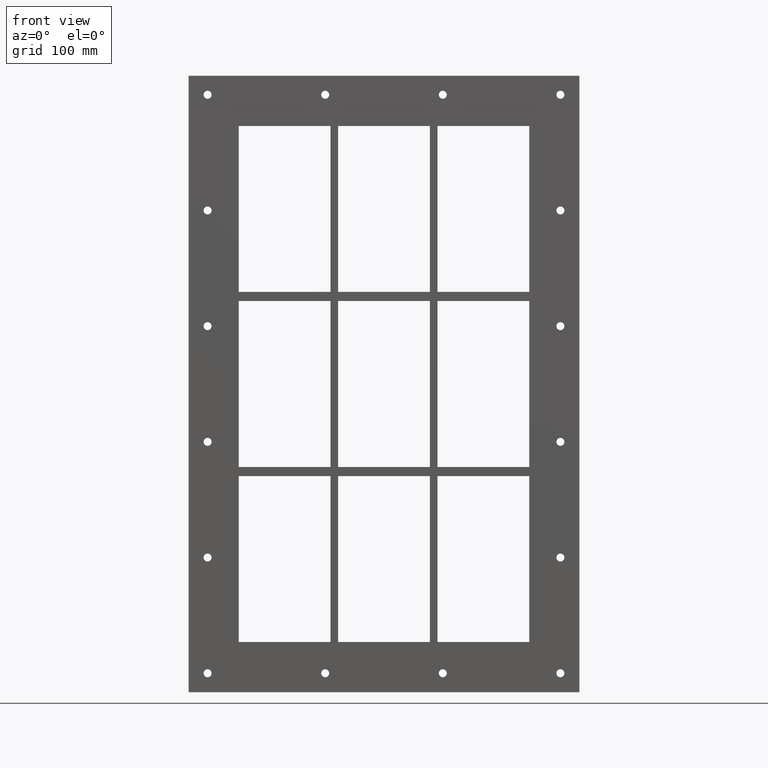
[diagram: clean part render]
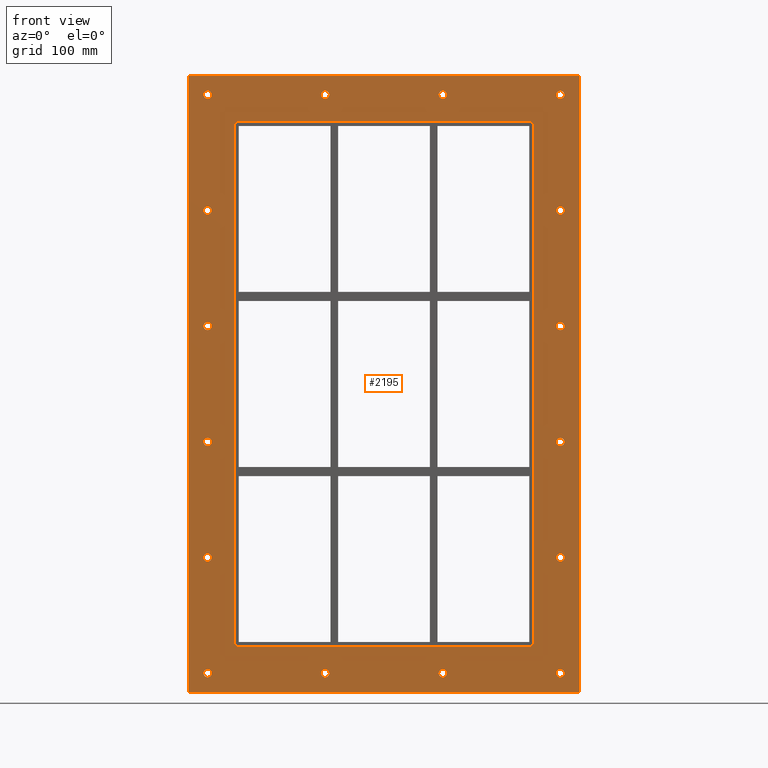
[diagram: same view with one face highlighted and labeled with its STEP entity id]
A machine part, front view. The second image highlights one B-rep face of the part: STEP entity #2195.
In plain terms, the highlighted planar face has unit normal (0, 1, 0).
Its self-contained STEP definition (entity closure, byte-faithful):
#84=CARTESIAN_POINT('',(-226.50000000000023,0.0,-380.00000000000011));
#85=VERTEX_POINT('',#84);
#86=CARTESIAN_POINT('',(-231.75000000000023,0.0,-380.00000000000011));
#87=DIRECTION('',(0.0,1.0,0.0));
#88=DIRECTION('',(1.0,0.0,0.0));
#89=AXIS2_PLACEMENT_3D('',#86,#87,#88);
#90=CIRCLE('',#89,5.25);
#91=EDGE_CURVE('',#85,#85,#90,.T.);
#112=CARTESIAN_POINT('',(236.99999999999977,0.0,-228.00000000000017));
#113=VERTEX_POINT('',#112);
#114=CARTESIAN_POINT('',(231.7499999999998,0.0,-228.00000000000017));
#115=DIRECTION('',(0.0,1.0,0.0));
#116=DIRECTION('',(1.0,0.0,0.0));
#117=AXIS2_PLACEMENT_3D('',#114,#115,#116);
#118=CIRCLE('',#117,5.25);
#119=EDGE_CURVE('',#113,#113,#118,.T.);
#140=CARTESIAN_POINT('',(-226.50000000000023,0.0,-228.00000000000017));
#141=VERTEX_POINT('',#140);
#142=CARTESIAN_POINT('',(-231.75000000000023,0.0,-228.00000000000017));
#143=DIRECTION('',(0.0,1.0,0.0));
#144=DIRECTION('',(1.0,0.0,0.0));
#145=AXIS2_PLACEMENT_3D('',#142,#143,#144);
#146=CIRCLE('',#145,5.25);
#147=EDGE_CURVE('',#141,#141,#146,.T.);
#168=CARTESIAN_POINT('',(236.99999999999977,0.0,-76.000000000000142));
#169=VERTEX_POINT('',#168);
#170=CARTESIAN_POINT('',(231.7499999999998,0.0,-76.000000000000142));
#171=DIRECTION('',(0.0,1.0,0.0));
#172=DIRECTION('',(1.0,0.0,0.0));
#173=AXIS2_PLACEMENT_3D('',#170,#171,#172);
#174=CIRCLE('',#173,5.25);
#175=EDGE_CURVE('',#169,#169,#174,.T.);
#196=CARTESIAN_POINT('',(-226.50000000000023,0.0,-76.000000000000142));
#197=VERTEX_POINT('',#196);
#198=CARTESIAN_POINT('',(-231.75000000000023,0.0,-76.000000000000142));
#199=DIRECTION('',(0.0,1.0,0.0));
#200=DIRECTION('',(1.0,0.0,0.0));
#201=AXIS2_PLACEMENT_3D('',#198,#199,#200);
#202=CIRCLE('',#201,5.25);
#203=EDGE_CURVE('',#197,#197,#202,.T.);
#224=CARTESIAN_POINT('',(236.99999999999977,0.0,75.999999999999815));
#225=VERTEX_POINT('',#224);
#226=CARTESIAN_POINT('',(231.7499999999998,0.0,75.999999999999815));
#227=DIRECTION('',(0.0,1.0,0.0));
#228=DIRECTION('',(1.0,0.0,0.0));
#229=AXIS2_PLACEMENT_3D('',#226,#227,#228);
#230=CIRCLE('',#229,5.25);
#231=EDGE_CURVE('',#225,#225,#230,.T.);
#252=CARTESIAN_POINT('',(-226.50000000000023,0.0,75.999999999999815));
#253=VERTEX_POINT('',#252);
#254=CARTESIAN_POINT('',(-231.75000000000023,0.0,75.999999999999815));
#255=DIRECTION('',(0.0,1.0,0.0));
#256=DIRECTION('',(1.0,0.0,0.0));
#257=AXIS2_PLACEMENT_3D('',#254,#255,#256);
#258=CIRCLE('',#257,5.25);
#259=EDGE_CURVE('',#253,#253,#258,.T.);
#280=CARTESIAN_POINT('',(236.99999999999977,0.0,227.99999999999983));
#281=VERTEX_POINT('',#280);
#282=CARTESIAN_POINT('',(231.7499999999998,0.0,227.99999999999983));
#283=DIRECTION('',(0.0,1.0,0.0));
#284=DIRECTION('',(1.0,0.0,0.0));
#285=AXIS2_PLACEMENT_3D('',#282,#283,#284);
#286=CIRCLE('',#285,5.25);
#287=EDGE_CURVE('',#281,#281,#286,.T.);
#308=CARTESIAN_POINT('',(-226.50000000000023,0.0,227.99999999999983));
#309=VERTEX_POINT('',#308);
#310=CARTESIAN_POINT('',(-231.75000000000023,0.0,227.99999999999983));
#311=DIRECTION('',(0.0,1.0,0.0));
#312=DIRECTION('',(1.0,0.0,0.0));
#313=AXIS2_PLACEMENT_3D('',#310,#311,#312);
#314=CIRCLE('',#313,5.25);
#315=EDGE_CURVE('',#309,#309,#314,.T.);
#336=CARTESIAN_POINT('',(-72.000000000000242,0.0,379.99999999999989));
#337=VERTEX_POINT('',#336);
#338=CARTESIAN_POINT('',(-77.250000000000227,0.0,379.99999999999989));
#339=DIRECTION('',(0.0,1.0,0.0));
#340=DIRECTION('',(1.0,0.0,0.0));
#341=AXIS2_PLACEMENT_3D('',#338,#339,#340);
#342=CIRCLE('',#341,5.25);
#343=EDGE_CURVE('',#337,#337,#342,.T.);
#364=CARTESIAN_POINT('',(-72.000000000000242,0.0,-380.00000000000011));
#365=VERTEX_POINT('',#364);
#366=CARTESIAN_POINT('',(-77.250000000000227,0.0,-380.00000000000011));
#367=DIRECTION('',(0.0,1.0,0.0));
#368=DIRECTION('',(1.0,0.0,0.0));
#369=AXIS2_PLACEMENT_3D('',#366,#367,#368);
#370=CIRCLE('',#369,5.25);
#371=EDGE_CURVE('',#365,#365,#370,.T.);
#392=CARTESIAN_POINT('',(82.499999999999773,0.0,379.99999999999989));
#393=VERTEX_POINT('',#392);
#394=CARTESIAN_POINT('',(77.249999999999787,0.0,379.99999999999989));
#395=DIRECTION('',(0.0,1.0,0.0));
#396=DIRECTION('',(1.0,0.0,0.0));
#397=AXIS2_PLACEMENT_3D('',#394,#395,#396);
#398=CIRCLE('',#397,5.25);
#399=EDGE_CURVE('',#393,#393,#398,.T.);
#420=CARTESIAN_POINT('',(82.499999999999773,0.0,-380.00000000000011));
#421=VERTEX_POINT('',#420);
#422=CARTESIAN_POINT('',(77.249999999999787,0.0,-380.00000000000011));
#423=DIRECTION('',(0.0,1.0,0.0));
#424=DIRECTION('',(1.0,0.0,0.0));
#425=AXIS2_PLACEMENT_3D('',#422,#423,#424);
#426=CIRCLE('',#425,5.25);
#427=EDGE_CURVE('',#421,#421,#426,.T.);
#448=CARTESIAN_POINT('',(236.99999999999977,0.0,-380.00000000000011));
#449=VERTEX_POINT('',#448);
#450=CARTESIAN_POINT('',(231.7499999999998,0.0,-380.00000000000011));
#451=DIRECTION('',(0.0,1.0,0.0));
#452=DIRECTION('',(1.0,0.0,0.0));
#453=AXIS2_PLACEMENT_3D('',#450,#451,#452);
#454=CIRCLE('',#453,5.25);
#455=EDGE_CURVE('',#449,#449,#454,.T.);
#476=CARTESIAN_POINT('',(-226.50000000000023,0.0,379.99999999999989));
#477=VERTEX_POINT('',#476);
#478=CARTESIAN_POINT('',(-231.75000000000023,0.0,379.99999999999989));
#479=DIRECTION('',(0.0,1.0,0.0));
#480=DIRECTION('',(1.0,0.0,0.0));
#481=AXIS2_PLACEMENT_3D('',#478,#479,#480);
#482=CIRCLE('',#481,5.25);
#483=EDGE_CURVE('',#477,#477,#482,.T.);
#504=CARTESIAN_POINT('',(236.99999999999977,0.0,379.99999999999989));
#505=VERTEX_POINT('',#504);
#506=CARTESIAN_POINT('',(231.7499999999998,0.0,379.99999999999989));
#507=DIRECTION('',(0.0,1.0,0.0));
#508=DIRECTION('',(1.0,0.0,0.0));
#509=AXIS2_PLACEMENT_3D('',#506,#507,#508);
#510=CIRCLE('',#509,5.25);
#511=EDGE_CURVE('',#505,#505,#510,.T.);
#2038=CARTESIAN_POINT('',(1.288479E-014,0.0,-3.865438E-014));
#2039=DIRECTION('',(0.0,1.0,0.0));
#2040=DIRECTION('',(0.0,0.0,1.0));
#2041=AXIS2_PLACEMENT_3D('',#2038,#2039,#2040);
#2042=PLANE('',#2041);
#2043=CARTESIAN_POINT('',(-256.75000000000006,0.0,405.00000000000006));
#2044=VERTEX_POINT('',#2043);
#2045=CARTESIAN_POINT('',(256.75000000000011,0.0,405.00000000000006));
#2046=VERTEX_POINT('',#2045);
#2047=CARTESIAN_POINT('',(-256.75000000000006,0.0,405.00000000000006));
#2048=DIRECTION('',(1.0,0.0,0.0));
#2049=VECTOR('',#2048,513.50000000000023);
#2050=LINE('',#2047,#2049);
#2051=EDGE_CURVE('',#2044,#2046,#2050,.T.);
#2052=ORIENTED_EDGE('',*,*,#2051,.F.);
#2053=CARTESIAN_POINT('',(-256.75000000000006,0.0,-405.00000000000011));
#2054=VERTEX_POINT('',#2053);
#2055=CARTESIAN_POINT('',(-256.75000000000006,0.0,-405.00000000000011));
#2056=DIRECTION('',(0.0,0.0,1.0));
#2057=VECTOR('',#2056,810.00000000000023);
#2058=LINE('',#2055,#2057);
#2059=EDGE_CURVE('',#2054,#2044,#2058,.T.);
#2060=ORIENTED_EDGE('',*,*,#2059,.F.);
#2061=CARTESIAN_POINT('',(256.75000000000011,0.0,-405.00000000000011));
#2062=VERTEX_POINT('',#2061);
#2063=CARTESIAN_POINT('',(256.75000000000011,0.0,-405.00000000000011));
#2064=DIRECTION('',(-1.0,0.0,0.0));
#2065=VECTOR('',#2064,513.50000000000023);
#2066=LINE('',#2063,#2065);
#2067=EDGE_CURVE('',#2062,#2054,#2066,.T.);
#2068=ORIENTED_EDGE('',*,*,#2067,.F.);
#2069=CARTESIAN_POINT('',(256.75000000000011,0.0,405.00000000000006));
#2070=DIRECTION('',(0.0,0.0,-1.0));
#2071=VECTOR('',#2070,810.00000000000023);
#2072=LINE('',#2069,#2071);
#2073=EDGE_CURVE('',#2046,#2062,#2072,.T.);
#2074=ORIENTED_EDGE('',*,*,#2073,.F.);
#2075=EDGE_LOOP('',(#2052,#2060,#2068,#2074));
#2076=FACE_OUTER_BOUND('',#2075,.T.);
#2077=ORIENTED_EDGE('',*,*,#91,.T.);
#2078=EDGE_LOOP('',(#2077));
#2079=FACE_BOUND('',#2078,.T.);
#2080=ORIENTED_EDGE('',*,*,#119,.T.);
#2081=EDGE_LOOP('',(#2080));
#2082=FACE_BOUND('',#2081,.T.);
#2083=ORIENTED_EDGE('',*,*,#147,.T.);
#2084=EDGE_LOOP('',(#2083));
#2085=FACE_BOUND('',#2084,.T.);
#2086=ORIENTED_EDGE('',*,*,#175,.T.);
#2087=EDGE_LOOP('',(#2086));
#2088=FACE_BOUND('',#2087,.T.);
#2089=ORIENTED_EDGE('',*,*,#203,.T.);
#2090=EDGE_LOOP('',(#2089));
#2091=FACE_BOUND('',#2090,.T.);
#2092=ORIENTED_EDGE('',*,*,#231,.T.);
#2093=EDGE_LOOP('',(#2092));
#2094=FACE_BOUND('',#2093,.T.);
#2095=ORIENTED_EDGE('',*,*,#259,.T.);
#2096=EDGE_LOOP('',(#2095));
#2097=FACE_BOUND('',#2096,.T.);
#2098=ORIENTED_EDGE('',*,*,#287,.T.);
#2099=EDGE_LOOP('',(#2098));
#2100=FACE_BOUND('',#2099,.T.);
#2101=ORIENTED_EDGE('',*,*,#315,.T.);
#2102=EDGE_LOOP('',(#2101));
#2103=FACE_BOUND('',#2102,.T.);
#2104=ORIENTED_EDGE('',*,*,#343,.T.);
#2105=EDGE_LOOP('',(#2104));
#2106=FACE_BOUND('',#2105,.T.);
#2107=ORIENTED_EDGE('',*,*,#371,.T.);
#2108=EDGE_LOOP('',(#2107));
#2109=FACE_BOUND('',#2108,.T.);
#2110=ORIENTED_EDGE('',*,*,#399,.T.);
#2111=EDGE_LOOP('',(#2110));
#2112=FACE_BOUND('',#2111,.T.);
#2113=ORIENTED_EDGE('',*,*,#427,.T.);
#2114=EDGE_LOOP('',(#2113));
#2115=FACE_BOUND('',#2114,.T.);
#2116=ORIENTED_EDGE('',*,*,#455,.T.);
#2117=EDGE_LOOP('',(#2116));
#2118=FACE_BOUND('',#2117,.T.);
#2119=ORIENTED_EDGE('',*,*,#483,.T.);
#2120=EDGE_LOOP('',(#2119));
#2121=FACE_BOUND('',#2120,.T.);
#2122=ORIENTED_EDGE('',*,*,#511,.T.);
#2123=EDGE_LOOP('',(#2122));
#2124=FACE_BOUND('',#2123,.T.);
#2125=CARTESIAN_POINT('',(-196.75000000000006,0.0,-339.00000000000006));
#2126=VERTEX_POINT('',#2125);
#2127=CARTESIAN_POINT('',(-190.75000000000003,0.0,-345.00000000000006));
#2128=VERTEX_POINT('',#2127);
#2129=CARTESIAN_POINT('',(-190.75000000000003,0.0,-339.00000000000006));
#2130=DIRECTION('',(0.0,-1.0,0.0));
#2131=DIRECTION('',(-0.707106781186552,0.0,-0.707106781186543));
#2132=AXIS2_PLACEMENT_3D('',#2129,#2130,#2131);
#2133=CIRCLE('',#2132,6.000000000000001);
#2134=EDGE_CURVE('',#2126,#2128,#2133,.T.);
#2135=ORIENTED_EDGE('',*,*,#2134,.F.);
#2136=CARTESIAN_POINT('',(-196.75000000000006,0.0,339.00000000000006));
#2137=VERTEX_POINT('',#2136);
#2138=CARTESIAN_POINT('',(-196.75000000000006,0.0,339.00000000000006));
#2139=DIRECTION('',(0.0,0.0,-1.0));
#2140=VECTOR('',#2139,678.00000000000011);
#2141=LINE('',#2138,#2140);
#2142=EDGE_CURVE('',#2137,#2126,#2141,.T.);
#2143=ORIENTED_EDGE('',*,*,#2142,.F.);
#2144=CARTESIAN_POINT('',(-190.75000000000003,0.0,345.00000000000006));
#2145=VERTEX_POINT('',#2144);
#2146=CARTESIAN_POINT('',(-190.75000000000003,0.0,339.00000000000006));
#2147=DIRECTION('',(0.0,-1.0,0.0));
#2148=DIRECTION('',(-0.707106781186552,0.0,0.707106781186543));
#2149=AXIS2_PLACEMENT_3D('',#2146,#2147,#2148);
#2150=CIRCLE('',#2149,6.000000000000001);
#2151=EDGE_CURVE('',#2145,#2137,#2150,.T.);
#2152=ORIENTED_EDGE('',*,*,#2151,.F.);
#2153=CARTESIAN_POINT('',(190.75000000000003,0.0,345.00000000000006));
#2154=VERTEX_POINT('',#2153);
#2155=CARTESIAN_POINT('',(190.75000000000003,0.0,345.00000000000006));
#2156=DIRECTION('',(-1.0,0.0,0.0));
#2157=VECTOR('',#2156,381.50000000000006);
#2158=LINE('',#2155,#2157);
#2159=EDGE_CURVE('',#2154,#2145,#2158,.T.);
#2160=ORIENTED_EDGE('',*,*,#2159,.F.);
#2161=CARTESIAN_POINT('',(196.75000000000006,0.0,339.00000000000006));
#2162=VERTEX_POINT('',#2161);
#2163=CARTESIAN_POINT('',(190.75000000000003,0.0,339.00000000000006));
#2164=DIRECTION('',(0.0,-1.0,0.0));
#2165=DIRECTION('',(0.707106781186552,0.0,0.707106781186543));
#2166=AXIS2_PLACEMENT_3D('',#2163,#2164,#2165);
#2167=CIRCLE('',#2166,6.000000000000001);
#2168=EDGE_CURVE('',#2162,#2154,#2167,.T.);
#2169=ORIENTED_EDGE('',*,*,#2168,.F.);
#2170=CARTESIAN_POINT('',(196.75000000000006,0.0,-339.00000000000006));
#2171=VERTEX_POINT('',#2170);
#2172=CARTESIAN_POINT('',(196.75000000000006,0.0,-339.00000000000006));
#2173=DIRECTION('',(0.0,0.0,1.0));
#2174=VECTOR('',#2173,678.00000000000011);
#2175=LINE('',#2172,#2174);
#2176=EDGE_CURVE('',#2171,#2162,#2175,.T.);
#2177=ORIENTED_EDGE('',*,*,#2176,.F.);
#2178=CARTESIAN_POINT('',(190.75000000000003,0.0,-345.00000000000006));
#2179=VERTEX_POINT('',#2178);
#2180=CARTESIAN_POINT('',(190.75000000000003,0.0,-339.00000000000006));
#2181=DIRECTION('',(0.0,-1.0,0.0));
#2182=DIRECTION('',(0.707106781186552,0.0,-0.707106781186543));
#2183=AXIS2_PLACEMENT_3D('',#2180,#2181,#2182);
#2184=CIRCLE('',#2183,6.000000000000001);
#2185=EDGE_CURVE('',#2179,#2171,#2184,.T.);
#2186=ORIENTED_EDGE('',*,*,#2185,.F.);
#2187=CARTESIAN_POINT('',(-190.75000000000003,0.0,-345.00000000000006));
#2188=DIRECTION('',(1.0,0.0,0.0));
#2189=VECTOR('',#2188,381.50000000000006);
#2190=LINE('',#2187,#2189);
#2191=EDGE_CURVE('',#2128,#2179,#2190,.T.);
#2192=ORIENTED_EDGE('',*,*,#2191,.F.);
#2193=EDGE_LOOP('',(#2135,#2143,#2152,#2160,#2169,#2177,#2186,#2192));
#2194=FACE_BOUND('',#2193,.T.);
#2195=ADVANCED_FACE('',(#2076,#2079,#2082,#2085,#2088,#2091,#2094,#2097,#2100,#2103,#2106,#2109,#2112,#2115,#2118,#2121,#2124,#2194),#2042,.F.);